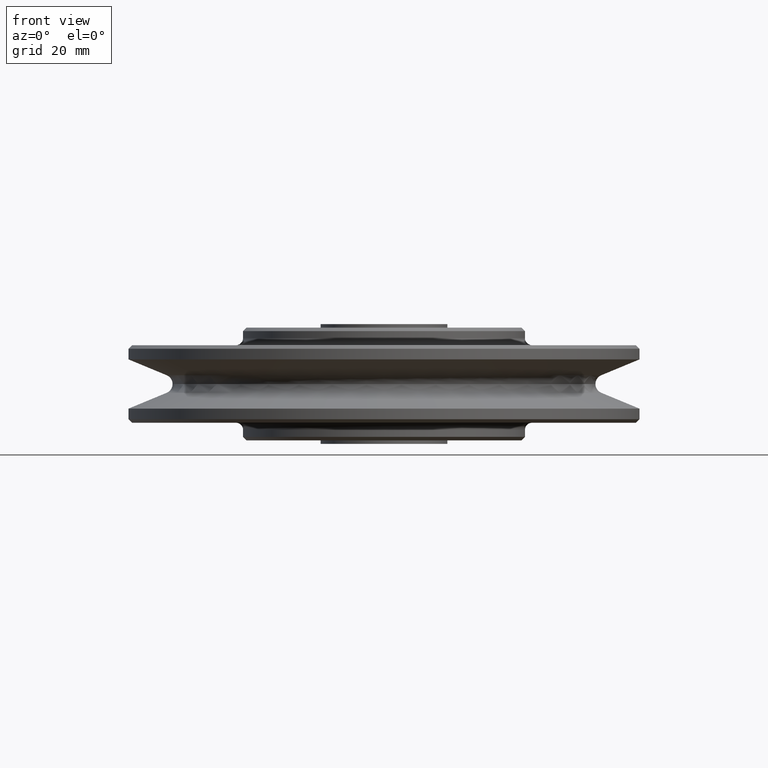
[diagram: clean part render]
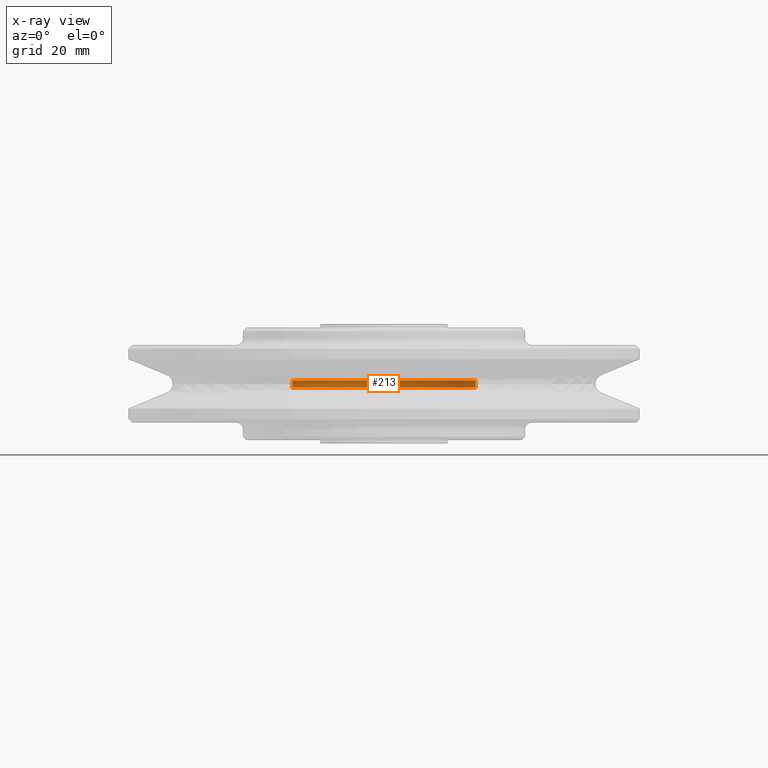
[diagram: x-ray — body ghosted, one internal face saturated and labeled with its STEP entity id]
A machine part, front view, then the same camera in x-ray: the body is ghosted and one INTERNAL B-rep face — a face not visible from any outside direction — is saturated and labeled: STEP entity #213.
In plain terms, the highlighted cylindrical surface (partial cylindrical patch) has radius 26 mm, axis along (0, 0, 1).
Its self-contained STEP definition (entity closure, byte-faithful):
#213=ADVANCED_FACE('',(#514),#515,.F.);
#514=FACE_OUTER_BOUND('',#924,.T.);
#515=CYLINDRICAL_SURFACE('',#925,26.0);
#924=EDGE_LOOP('',(#1483,#1484,#1485,#1486));
#925=AXIS2_PLACEMENT_3D('',#1487,#1488,#1489);
#1483=ORIENTED_EDGE('',*,*,#2709,.F.);
#1484=ORIENTED_EDGE('',*,*,#2710,.T.);
#1485=ORIENTED_EDGE('',*,*,#2711,.F.);
#1486=ORIENTED_EDGE('',*,*,#2712,.T.);
#1487=CARTESIAN_POINT('',(0.0,0.0,0.0));
#1488=DIRECTION('',(0.0,0.0,1.0));
#1489=DIRECTION('',(1.0,0.0,0.0));
#2709=EDGE_CURVE('',#3346,#3347,#3348,.T.);
#2710=EDGE_CURVE('',#3346,#3349,#3350,.T.);
#2711=EDGE_CURVE('',#3351,#3349,#3352,.T.);
#2712=EDGE_CURVE('',#3351,#3347,#3353,.T.);
#3346=VERTEX_POINT('',#4887);
#3347=VERTEX_POINT('',#4888);
#3348=LINE('',#4889,#4890);
#3349=VERTEX_POINT('',#4891);
#3350=CIRCLE('',#4892,26.0);
#3351=VERTEX_POINT('',#4893);
#3352=LINE('',#4894,#4895);
#3353=CIRCLE('',#4896,26.0);
#4887=CARTESIAN_POINT('',(26.0,0.0,1.0));
#4888=CARTESIAN_POINT('',(26.0,0.0,-1.0));
#4889=CARTESIAN_POINT('',(26.0,-3.18408167778312E-015,0.0));
#4890=VECTOR('',#8044,1.0);
#4891=CARTESIAN_POINT('',(-26.0,3.18408167778312E-015,1.0));
#4892=AXIS2_PLACEMENT_3D('',#8045,#8046,#8047);
#4893=CARTESIAN_POINT('',(-26.0,3.18408167778312E-015,-1.0));
#4894=CARTESIAN_POINT('',(-26.0,3.18408167778312E-015,0.0));
#4895=VECTOR('',#8048,1.0);
#4896=AXIS2_PLACEMENT_3D('',#8049,#8050,#8051);
#8044=DIRECTION('',(-0.0,0.0,-1.0));
#8045=CARTESIAN_POINT('',(0.0,0.0,1.0));
#8046=DIRECTION('',(0.0,-0.0,1.0));
#8047=DIRECTION('',(1.0,0.0,0.0));
#8048=DIRECTION('',(-0.0,0.0,1.0));
#8049=CARTESIAN_POINT('',(0.0,0.0,-1.0));
#8050=DIRECTION('',(0.0,0.0,-1.0));
#8051=DIRECTION('',(1.0,0.0,0.0));